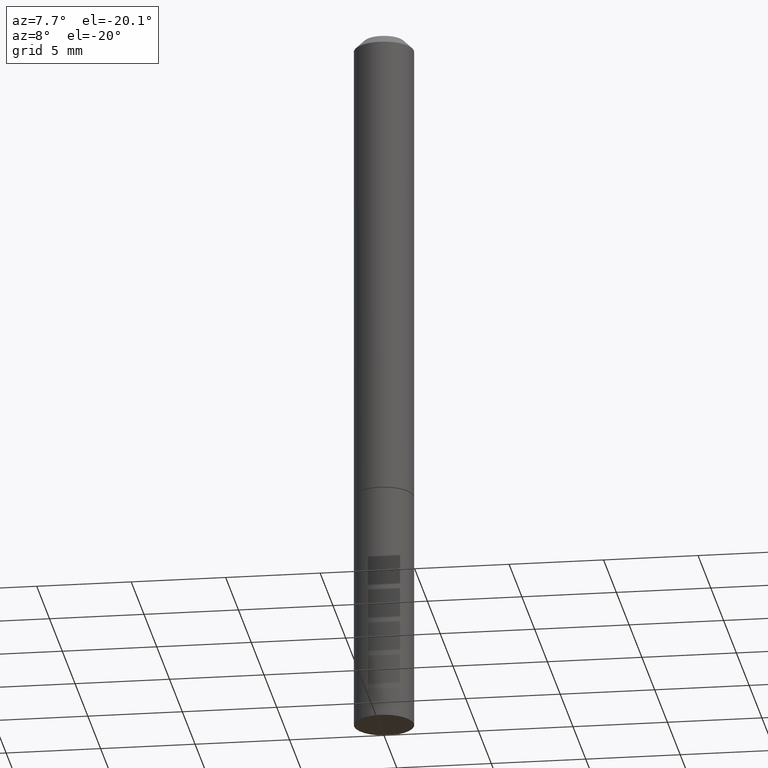
[diagram: clean part render]
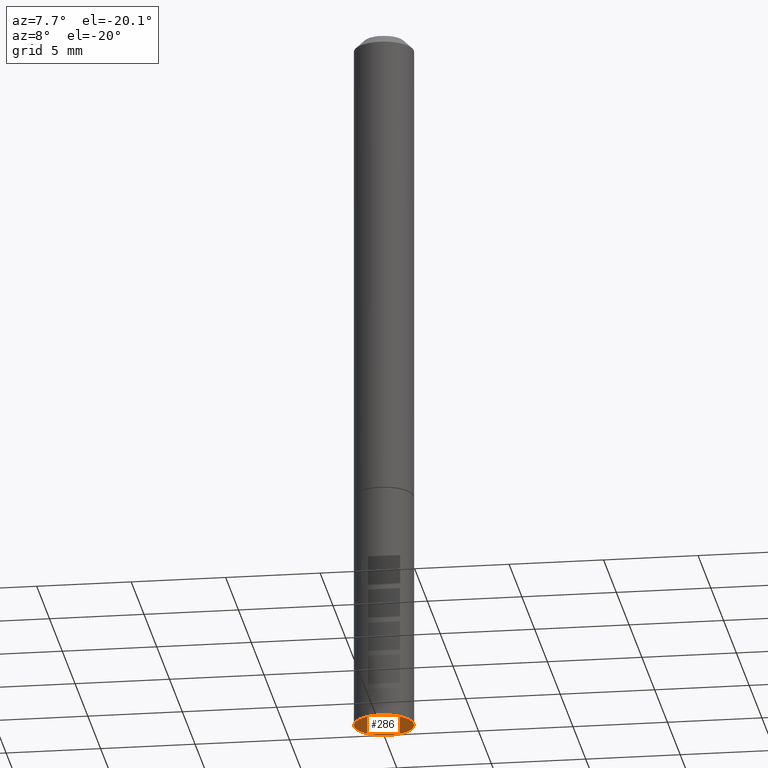
[diagram: same view with one face highlighted and labeled with its STEP entity id]
A machine part, auxiliary view. The second image highlights one B-rep face of the part: STEP entity #286.
In plain terms, the highlighted planar face has unit normal (0, -0, -1).
Its self-contained STEP definition (entity closure, byte-faithful):
#55 = AXIS2_PLACEMENT_3D ( 'NONE', #80, #280, #202 ) ;
#63 = DIRECTION ( 'NONE',  ( -2.445468806185136597E-29, 3.491481338843145583E-15, 1.000000000000000000 ) ) ;
#72 = VERTEX_POINT ( 'NONE', #347 ) ;
#80 = CARTESIAN_POINT ( 'NONE',  ( 4.364351673554284500E-16, 0.06249999999999478195, -1.500000000000000444 ) ) ;
#106 = ORIENTED_EDGE ( 'NONE', *, *, #114, .F. ) ;
#113 = ORIENTED_EDGE ( 'NONE', *, *, #251, .F. ) ;
#114 = EDGE_CURVE ( 'NONE', #72, #294, #195, .T. ) ;
#138 = AXIS2_PLACEMENT_3D ( 'NONE', #306, #265, #172 ) ;
#172 = DIRECTION ( 'NONE',  ( 1.000000000000000000, -6.982962677686261189E-15, 0.000000000000000000 ) ) ;
#177 = DIRECTION ( 'NONE',  ( 1.000000000000000000, -6.982962677686261189E-15, 0.000000000000000000 ) ) ;
#186 = AXIS2_PLACEMENT_3D ( 'NONE', #266, #63, #177 ) ;
#195 = CIRCLE ( 'NONE', #138, 0.06250000000000001388 ) ;
#198 = FACE_OUTER_BOUND ( 'NONE', #321, .T. ) ;
#202 = DIRECTION ( 'NONE',  ( -1.000000000000000000, 6.982962677686265922E-15, -4.876176775795935793E-29 ) ) ;
#238 = CIRCLE ( 'NONE', #186, 0.06250000000000001388 ) ;
#251 = EDGE_CURVE ( 'NONE', #294, #72, #238, .T. ) ;
#265 = DIRECTION ( 'NONE',  ( -2.445468806185136597E-29, 3.491481338843145583E-15, 1.000000000000000000 ) ) ;
#266 = CARTESIAN_POINT ( 'NONE',  ( 3.668203209277704895E-29, -5.237222008264718177E-15, -1.500000000000000222 ) ) ;
#280 = DIRECTION ( 'NONE',  ( 2.438088387897960049E-29, -3.491481338843145188E-15, -1.000000000000000000 ) ) ;
#286 = ADVANCED_FACE ( 'NONE', ( #198 ), #330, .T. ) ;
#294 = VERTEX_POINT ( 'NONE', #304 ) ;
#304 = CARTESIAN_POINT ( 'NONE',  ( 0.06250000000000001388, -5.673657175620109846E-15, -1.500000000000000222 ) ) ;
#306 = CARTESIAN_POINT ( 'NONE',  ( 3.668203209277704895E-29, -5.237222008264718177E-15, -1.500000000000000222 ) ) ;
#321 = EDGE_LOOP ( 'NONE', ( #113, #106 ) ) ;
#330 = PLANE ( 'NONE',  #55 ) ;
#347 = CARTESIAN_POINT ( 'NONE',  ( -0.06250000000000001388, -3.920262463703869855E-15, -1.500000000000000222 ) ) ;